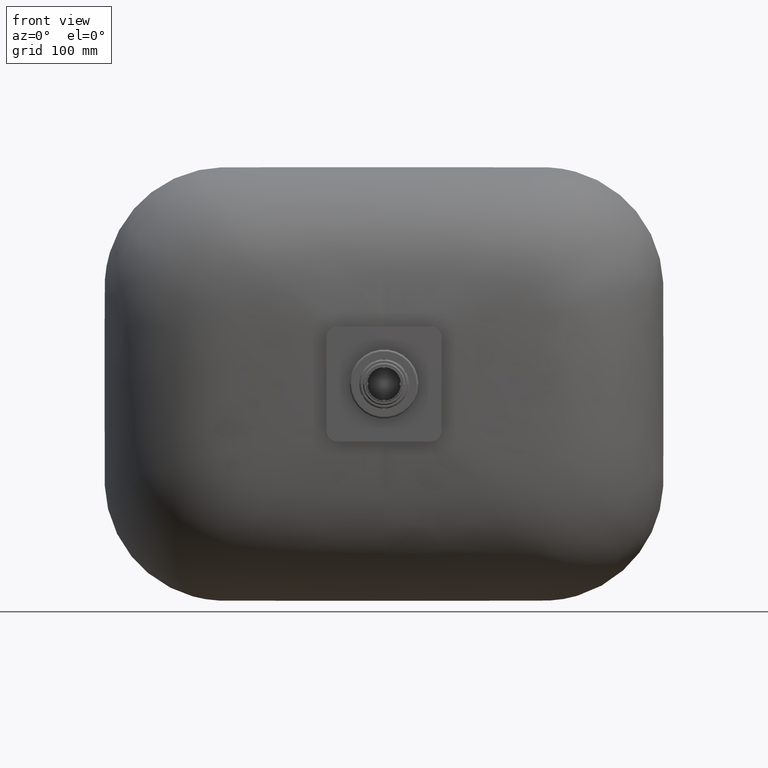
[diagram: clean part render]
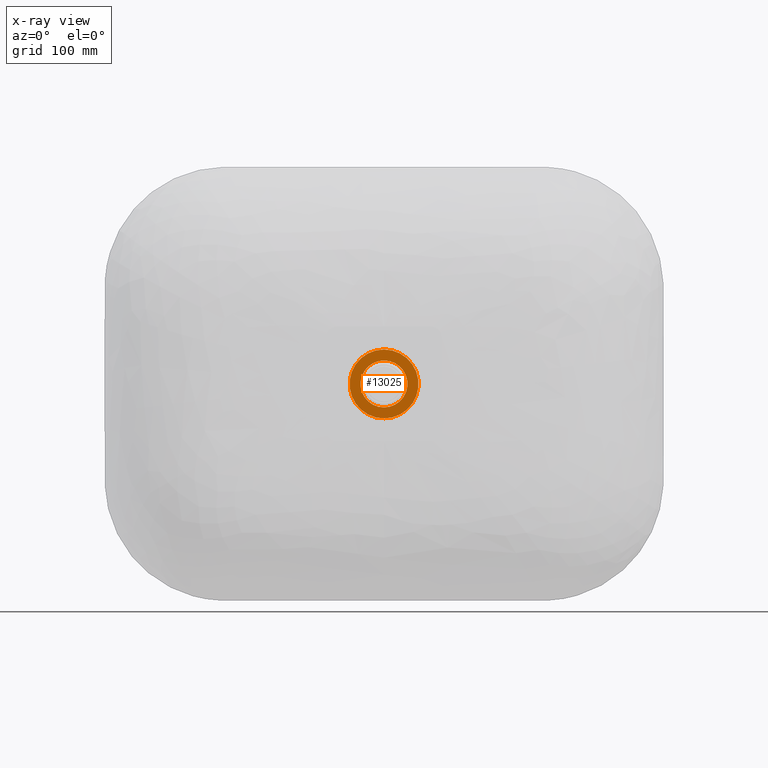
[diagram: x-ray — body ghosted, one internal face saturated and labeled with its STEP entity id]
A machine part, front view, then the same camera in x-ray: the body is ghosted and one INTERNAL B-rep face — a face not visible from any outside direction — is saturated and labeled: STEP entity #13025.
In plain terms, the highlighted planar face has unit normal (0, -1, 0).
Its self-contained STEP definition (entity closure, byte-faithful):
#1385 = CARTESIAN_POINT ( 'NONE',  ( 8.326672684688674100E-014, -114.9999999999998600, -22.49999999999950300 ) ) ;
#1629 = CIRCLE ( 'NONE', #10926, 22.50000000000000400 ) ;
#2080 = VERTEX_POINT ( 'NONE', #2910 ) ;
#2128 = VERTEX_POINT ( 'NONE', #10352 ) ;
#2701 = CARTESIAN_POINT ( 'NONE',  ( 8.602218214496828100E-014, -114.9999999999998600, 22.50000000000050100 ) ) ;
#2910 = CARTESIAN_POINT ( 'NONE',  ( 8.730806128407301300E-014, -114.9999999999998600, 33.00000000000050400 ) ) ;
#3015 = DIRECTION ( 'NONE',  ( 0.0000000000000000000, -0.0000000000000000000, -1.000000000000000000 ) ) ;
#3157 = DIRECTION ( 'NONE',  ( 0.0000000000000000000, -1.000000000000000000, 0.0000000000000000000 ) ) ;
#3469 = CIRCLE ( 'NONE', #6709, 22.50000000000000400 ) ;
#3813 = AXIS2_PLACEMENT_3D ( 'NONE', #4553, #12189, #5662 ) ;
#4055 = CARTESIAN_POINT ( 'NONE',  ( 8.326672684688674100E-014, -114.9999999999998600, 4.996003610813204400E-013 ) ) ;
#4217 = EDGE_CURVE ( 'NONE', #2080, #2128, #9434, .T. ) ;
#4553 = CARTESIAN_POINT ( 'NONE',  ( 8.326672684688674100E-014, -114.9999999999998600, 4.996003610813204400E-013 ) ) ;
#4950 = ORIENTED_EDGE ( 'NONE', *, *, #8613, .F. ) ;
#5049 = EDGE_LOOP ( 'NONE', ( #9699, #13431 ) ) ;
#5611 = CARTESIAN_POINT ( 'NONE',  ( 8.326672684688674100E-014, -114.9999999999998600, 4.996003610813204400E-013 ) ) ;
#5662 = DIRECTION ( 'NONE',  ( 0.0000000000000000000, 0.0000000000000000000, -1.000000000000000000 ) ) ;
#6264 = PLANE ( 'NONE',  #13751 ) ;
#6279 = DIRECTION ( 'NONE',  ( 0.0000000000000000000, -1.000000000000000000, 0.0000000000000000000 ) ) ;
#6689 = DIRECTION ( 'NONE',  ( 0.0000000000000000000, 0.0000000000000000000, -1.000000000000000000 ) ) ;
#6709 = AXIS2_PLACEMENT_3D ( 'NONE', #5611, #13229, #6689 ) ;
#8005 = ORIENTED_EDGE ( 'NONE', *, *, #12383, .F. ) ;
#8076 = FACE_OUTER_BOUND ( 'NONE', #5049, .T. ) ;
#8613 = EDGE_CURVE ( 'NONE', #10701, #9169, #1629, .T. ) ;
#9095 = AXIS2_PLACEMENT_3D ( 'NONE', #12812, #6279, #13905 ) ;
#9169 = VERTEX_POINT ( 'NONE', #2701 ) ;
#9434 = CIRCLE ( 'NONE', #3813, 33.00000000000000000 ) ;
#9554 = DIRECTION ( 'NONE',  ( 0.0000000000000000000, -1.000000000000000000, 0.0000000000000000000 ) ) ;
#9692 = CARTESIAN_POINT ( 'NONE',  ( 8.326672684688674100E-014, -114.9999999999998600, 4.996003610813204400E-013 ) ) ;
#9699 = ORIENTED_EDGE ( 'NONE', *, *, #13391, .T. ) ;
#10284 = FACE_BOUND ( 'NONE', #10898, .T. ) ;
#10352 = CARTESIAN_POINT ( 'NONE',  ( 8.326672684688674100E-014, -114.9999999999998600, -32.99999999999950300 ) ) ;
#10701 = VERTEX_POINT ( 'NONE', #1385 ) ;
#10802 = DIRECTION ( 'NONE',  ( 0.0000000000000000000, 0.0000000000000000000, -1.000000000000000000 ) ) ;
#10898 = EDGE_LOOP ( 'NONE', ( #4950, #8005 ) ) ;
#10926 = AXIS2_PLACEMENT_3D ( 'NONE', #9692, #3157, #10802 ) ;
#12189 = DIRECTION ( 'NONE',  ( 0.0000000000000000000, -1.000000000000000000, 0.0000000000000000000 ) ) ;
#12383 = EDGE_CURVE ( 'NONE', #9169, #10701, #3469, .T. ) ;
#12812 = CARTESIAN_POINT ( 'NONE',  ( 8.326672684688674100E-014, -114.9999999999998600, 4.996003610813204400E-013 ) ) ;
#13019 = CIRCLE ( 'NONE', #9095, 33.00000000000000000 ) ;
#13025 = ADVANCED_FACE ( 'NONE', ( #10284, #8076 ), #6264, .T. ) ;
#13229 = DIRECTION ( 'NONE',  ( 0.0000000000000000000, -1.000000000000000000, 0.0000000000000000000 ) ) ;
#13391 = EDGE_CURVE ( 'NONE', #2128, #2080, #13019, .T. ) ;
#13431 = ORIENTED_EDGE ( 'NONE', *, *, #4217, .T. ) ;
#13751 = AXIS2_PLACEMENT_3D ( 'NONE', #4055, #9554, #3015 ) ;
#13905 = DIRECTION ( 'NONE',  ( 0.0000000000000000000, 0.0000000000000000000, -1.000000000000000000 ) ) ;